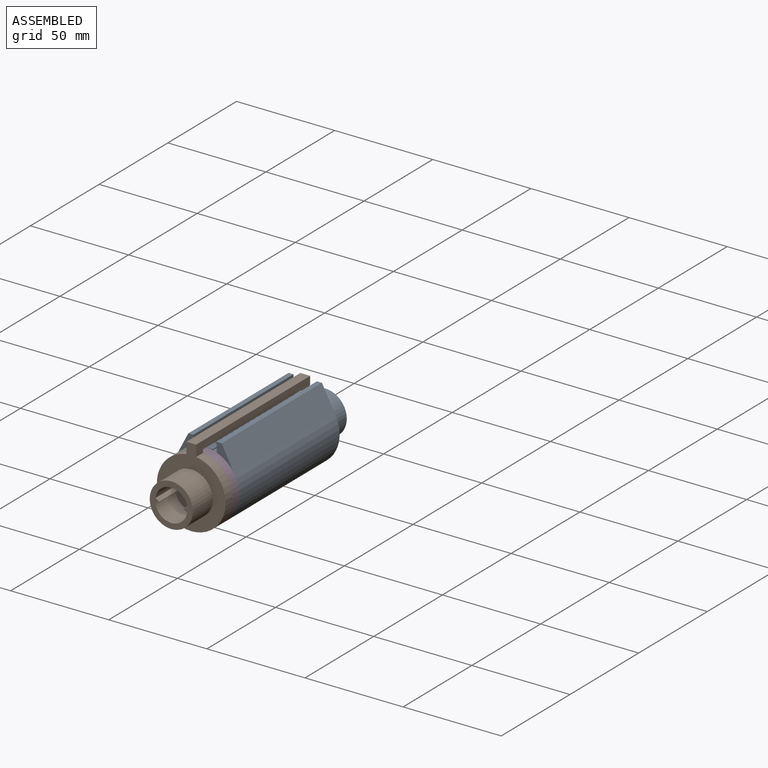
[diagram: assembled view]
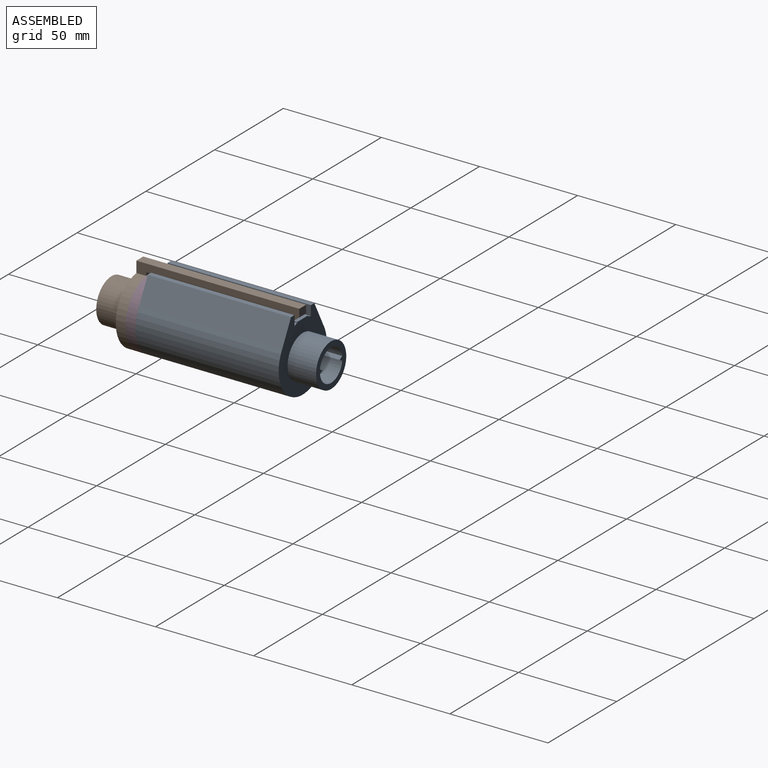
[diagram: assembled view, second angle]
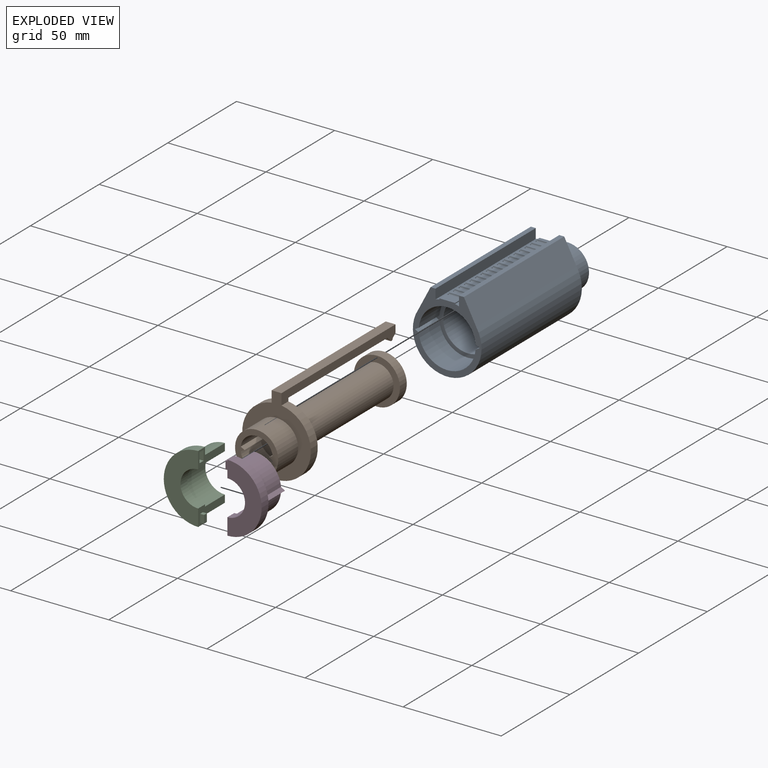
[diagram: exploded view]
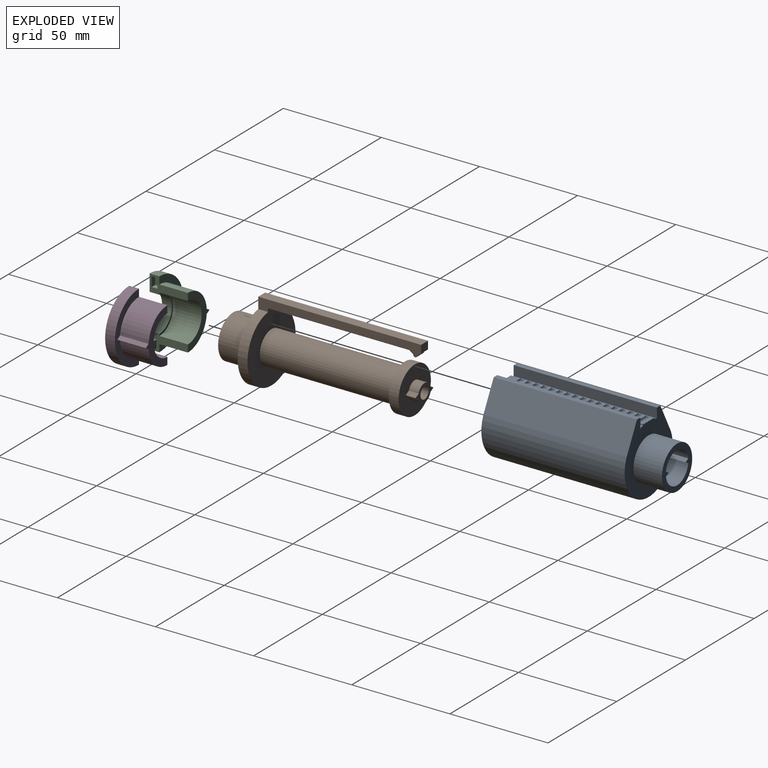
[diagram: exploded view, second angle]
ASSEMBLY  parts=4 mates=3
PART A: 143 faces, bbox 35x87.5x38.9 mm
  f0: plane 8x2mm, normal (0,0,1), area 16mm2, adj f18,f36,f139,f142
  f1: plane 8x2mm, normal (0,0,1), area 16mm2, adj f19,f37,f136,f139
  f2: plane 8x2mm, normal (0,0,1), area 16mm2, adj f20,f38,f133,f136
  f3: plane 8x2mm, normal (0,0,1), area 16mm2, adj f21,f39,f130,f133
  f4: plane 8x2mm, normal (0,0,1), area 16mm2, adj f22,f40,f127,f130
  f5: plane 8x2mm, normal (0,0,1), area 16mm2, adj f23,f41,f124,f127
  f6: plane 8x2mm, normal (0,0,1), area 16mm2, adj f24,f42,f121,f124
  f7: plane 8x2mm, normal (0,0,1), area 16mm2, adj f25,f43,f118,f121
  f8: plane 8x2mm, normal (0,0,1), area 16mm2, adj f26,f44,f115,f118
  f9: plane 8x2mm, normal (0,0,1), area 16mm2, adj f27,f45,f112,f115
  f10: plane 8x2mm, normal (0,0,1), area 16mm2, adj f28,f46,f109,f112
  f11: plane 8x2mm, normal (0,0,1), area 16mm2, adj f29,f47,f106,f109
  f12: plane 8x2mm, normal (0,0,1), area 16mm2, adj f30,f48,f103,f106
  f13: plane 8x2mm, normal (0,0,1), area 16mm2, adj f31,f49,f100,f103
  f14: plane 8x2mm, normal (0,0,1), area 16mm2, adj f32,f50,f97,f100
  f15: plane 8x2mm, normal (0,0,1), area 16mm2, adj f33,f51,f94,f97
  f16: plane 8x5mm, normal (0,0,1), area 40mm2, adj f34,f52,f54,f94
  f17: plane 2.11x0.46mm, normal (-1,0,0), area 0.9mm2, adj f57,f58,f67,f142
  f18: plane 2.23x0.46mm, normal (-1,0,0), area 1mm2, adj f0,f58,f139,f142
  f19: plane 2.23x0.46mm, normal (-1,0,0), area 1mm2, adj f1,f58,f136,f139
  f20: plane 2.23x0.46mm, normal (-1,0,0), area 1mm2, adj f2,f58,f133,f136
  f21: plane 2.23x0.46mm, normal (-1,0,0), area 1mm2, adj f3,f58,f130,f133
  f22: plane 2.23x0.46mm, normal (-1,0,0), area 1mm2, adj f4,f58,f127,f130
  f23: plane 2.23x0.46mm, normal (-1,0,0), area 1mm2, adj f5,f58,f124,f127
  f24: plane 2.23x0.46mm, normal (-1,0,0), area 1mm2, adj f6,f58,f121,f124
  f25: plane 2.23x0.46mm, normal (-1,0,0), area 1mm2, adj f7,f58,f118,f121
  f26: plane 2.23x0.46mm, normal (-1,0,0), area 1mm2, adj f8,f58,f115,f118
  f27: plane 2.23x0.46mm, normal (-1,0,0), area 1mm2, adj f9,f58,f112,f115
  f28: plane 2.23x0.46mm, normal (-1,0,0), area 1mm2, adj f10,f58,f109,f112
  f29: plane 2.23x0.46mm, normal (-1,0,0), area 1mm2, adj f11,f58,f106,f109
  f30: plane 2.23x0.46mm, normal (-1,0,0), area 1mm2, adj f12,f58,f103,f106
  f31: plane 2.23x0.46mm, normal (-1,0,0), area 1mm2, adj f13,f58,f100,f103
  f32: plane 2.23x0.46mm, normal (-1,0,0), area 1mm2, adj f14,f58,f97,f100
  f33: plane 2.23x0.46mm, normal (-1,0,0), area 1mm2, adj f15,f58,f94,f97
  f34: plane 5.11x0.46mm, normal (-1,0,0), area 2.3mm2, adj f16,f54,f58,f94
  f35: plane 2.11x0.46mm, normal (1,0,0), area 0.9mm2, adj f57,f66,f67,f142
  f36: plane 2.23x0.46mm, normal (1,0,0), area 1mm2, adj f0,f66,f139,f142
  f37: plane 2.23x0.46mm, normal (1,0,0), area 1mm2, adj f1,f66,f136,f139
  f38: plane 2.23x0.46mm, normal (1,0,0), area 1mm2, adj f2,f66,f133,f136
  f39: plane 2.23x0.46mm, normal (1,0,0), area 1mm2, adj f3,f66,f130,f133
  f40: plane 2.23x0.46mm, normal (1,0,0), area 1mm2, adj f4,f66,f127,f130
  f41: plane 2.23x0.46mm, normal (1,0,0), area 1mm2, adj f5,f66,f124,f127
  f42: plane 2.23x0.46mm, normal (1,0,0), area 1mm2, adj f6,f66,f121,f124
  f43: plane 2.23x0.46mm, normal (1,0,0), area 1mm2, adj f7,f66,f118,f121
  f44: plane 2.23x0.46mm, normal (1,0,0), area 1mm2, adj f8,f66,f115,f118
  f45: plane 2.23x0.46mm, normal (1,0,0), area 1mm2, adj f9,f66,f112,f115
  f46: plane 2.23x0.46mm, normal (1,0,0), area 1mm2, adj f10,f66,f109,f112
  f47: plane 2.23x0.46mm, normal (1,0,0), area 1mm2, adj f11,f66,f106,f109
  f48: plane 2.23x0.46mm, normal (1,0,0), area 1mm2, adj f12,f66,f103,f106
  f49: plane 2.23x0.46mm, normal (1,0,0), area 1mm2, adj f13,f66,f100,f103
  f50: plane 2.23x0.46mm, normal (1,0,0), area 1mm2, adj f14,f66,f97,f100
  f51: plane 2.23x0.46mm, normal (1,0,0), area 1mm2, adj f15,f66,f94,f97
  f52: plane 5.11x0.46mm, normal (1,0,0), area 2.3mm2, adj f16,f54,f66,f94
  f53: cylinder r=12.5mm len=53mm, axis (0,1,0), area 4162.6mm2, adj f74,f91
  f54: plane 38.94x35mm, normal (0,-1,0), area 358.1mm2, adj f16,f34,f52,f58,f59,f60,f61,f62
  f55: plane 16.25x7.97mm, normal (0,1,0), area 61.9mm2, adj f69,f70,f71,f80,f81,f82
  f56: plane 16.25x7.97mm, normal (0,1,0), area 61.9mm2, adj f68,f72,f73,f77,f78,f79
  f57: plane 8x2mm, normal (0,0,1), area 16mm2, adj f17,f35,f67,f142
  f58: cylinder r=17.5mm len=73mm, axis (0,1,0), area 152.5mm2, adj f17,f18,f19,f20,f21,f22,f23,f24
  f59: plane 73x5mm, normal (1,0,0), area 365mm2, adj f54,f58,f60,f67
  f60: plane 73x2.5mm, normal (0,0,1), area 182.5mm2, adj f54,f59,f61,f67
  f61: plane 73x12.09mm, normal (-0.89,0,0.46), area 995.3mm2, adj f54,f60,f62,f67
  f62: cylinder r=17.5mm len=73mm, axis (0,1,0), area 5452.8mm2, adj f54,f61,f63,f67
  f63: plane 73x12.09mm, normal (0.89,0,0.46), area 995.3mm2, adj f54,f62,f64,f67
  f64: plane 73x2.5mm, normal (0,0,1), area 182.5mm2, adj f54,f63,f65,f67
  f65: plane 73x5mm, normal (-1,0,0), area 365mm2, adj f54,f64,f66,f67
  f66: cylinder r=17.5mm len=73mm, axis (0,1,0), area 152.5mm2, adj f35,f36,f37,f38,f39,f40,f41,f42
  f67: plane 38.94x35mm, normal (0,1,0), area 643.2mm2, adj f17,f35,f57,f58,f59,f60,f61,f62
  f68: plane 5x2.16mm, normal (-0.5,0,-0.87), area 12.5mm2, adj f56,f69,f73,f74,f76
  f69: plane 5x2.16mm, normal (-0.5,0,0.87), area 12.5mm2, adj f55,f68,f70,f74,f76
  f70: cylinder r=5mm len=9.68mm, axis (0,1,0), area 65.9mm2, adj f55,f69,f71,f74
  f71: plane 5x2.16mm, normal (0.5,0,0.87), area 12.5mm2, adj f55,f70,f72,f74,f75
  f72: plane 5x2.16mm, normal (0.5,0,-0.87), area 12.5mm2, adj f56,f71,f73,f74,f75
  f73: cylinder r=5mm len=9.68mm, axis (0,1,0), area 65.9mm2, adj f56,f68,f72,f74
  f74: plane 25x25mm, normal (0,-1,0), area 407.5mm2, adj f53,f68,f69,f70,f71,f72,f73
  f75: plane 0.8x0.46mm, normal (0,-1,0), area 0.2mm2, adj f71,f72,f79,f80
  f76: plane 0.8x0.46mm, normal (0,-1,0), area 0.2mm2, adj f68,f69,f77,f82
  f77: plane 14.5x1.92mm, normal (-0.5,0,0.87), area 32.2mm2, adj f56,f76,f78,f82,f84
  f78: cylinder r=8.2mm len=16.25mm, axis (0,-1,0), area 341.2mm2, adj f56,f77,f79,f84
  f79: plane 14.5x1.92mm, normal (0.5,0,0.87), area 32.2mm2, adj f56,f75,f78,f80,f84
  f80: plane 14.5x1.92mm, normal (0.5,0,-0.87), area 32.2mm2, adj f55,f75,f79,f81,f84
  f81: cylinder r=8.2mm len=16.25mm, axis (0,-1,0), area 341.2mm2, adj f55,f80,f82,f84
  f82: plane 14.5x1.92mm, normal (-0.5,0,-0.87), area 32.2mm2, adj f55,f76,f77,f81,f84
  f83: cylinder r=11mm len=22mm, axis (0,-1,0), area 1002.2mm2, adj f67,f84
  f84: plane 22x22mm, normal (0,1,0), area 173.4mm2, adj f77,f78,f79,f80,f81,f82,f83
  f85: plane 15x2.05mm, normal (0.5,0,-0.87), area 35.5mm2, adj f54,f86,f90,f91
  f86: plane 15x2.05mm, normal (0.5,0,0.87), area 35.5mm2, adj f54,f85,f87,f91
  f87: cylinder r=14.5mm len=28.9mm, axis (0,-1,0), area 647.8mm2, adj f54,f86,f88,f91
  f88: plane 15x2.05mm, normal (-0.5,0,0.87), area 35.5mm2, adj f54,f87,f89,f91
  f89: plane 15x2.05mm, normal (-0.5,0,-0.87), area 35.5mm2, adj f54,f88,f90,f91
  f90: cylinder r=14.5mm len=28.9mm, axis (0,-1,0), area 647.8mm2, adj f54,f85,f89,f91
  f91: plane 33x29mm, normal (0,-1,0), area 174.3mm2, adj f53,f85,f86,f87,f88,f89,f90
  f92: plane 1.77x0.54mm, normal (1,0,0), area 0.7mm2, adj f58,f94
  f93: plane 1.77x0.54mm, normal (-1,0,0), area 0.7mm2, adj f66,f94
  f94: cylinder r=1mm len=8mm, axis (-1,0,0), area 25.1mm2, adj f15,f16,f33,f34,f51,f52,f92,f93
  f95: plane 1.77x0.54mm, normal (1,0,0), area 0.7mm2, adj f58,f97
  f96: plane 1.77x0.54mm, normal (-1,0,0), area 0.7mm2, adj f66,f97
  f97: cylinder r=1mm len=8mm, axis (-1,0,0), area 25.1mm2, adj f14,f15,f32,f33,f50,f51,f95,f96
  f98: plane 1.77x0.54mm, normal (1,0,0), area 0.7mm2, adj f58,f100
  f99: plane 1.77x0.54mm, normal (-1,0,0), area 0.7mm2, adj f66,f100
  f100: cylinder r=1mm len=8mm, axis (-1,0,0), area 25.1mm2, adj f13,f14,f31,f32,f49,f50,f98,f99
  f101: plane 1.77x0.54mm, normal (1,0,0), area 0.7mm2, adj f58,f103
  f102: plane 1.77x0.54mm, normal (-1,0,0), area 0.7mm2, adj f66,f103
  f103: cylinder r=1mm len=8mm, axis (-1,0,0), area 25.1mm2, adj f12,f13,f30,f31,f48,f49,f101,f102
  f104: plane 1.77x0.54mm, normal (1,0,0), area 0.7mm2, adj f58,f106
  f105: plane 1.77x0.54mm, normal (-1,0,0), area 0.7mm2, adj f66,f106
  f106: cylinder r=1mm len=8mm, axis (-1,0,0), area 25.1mm2, adj f11,f12,f29,f30,f47,f48,f104,f105
  f107: plane 1.77x0.54mm, normal (1,0,0), area 0.7mm2, adj f58,f109
  f108: plane 1.77x0.54mm, normal (-1,0,0), area 0.7mm2, adj f66,f109
  f109: cylinder r=1mm len=8mm, axis (-1,0,0), area 25.1mm2, adj f10,f11,f28,f29,f46,f47,f107,f108
  f110: plane 1.77x0.54mm, normal (1,0,0), area 0.7mm2, adj f58,f112
  f111: plane 1.77x0.54mm, normal (-1,0,0), area 0.7mm2, adj f66,f112
  f112: cylinder r=1mm len=8mm, axis (-1,0,0), area 25.1mm2, adj f9,f10,f27,f28,f45,f46,f110,f111
  f113: plane 1.77x0.54mm, normal (1,0,0), area 0.7mm2, adj f58,f115
  f114: plane 1.77x0.54mm, normal (-1,0,0), area 0.7mm2, adj f66,f115
  f115: cylinder r=1mm len=8mm, axis (-1,0,0), area 25.1mm2, adj f8,f9,f26,f27,f44,f45,f113,f114
  f116: plane 1.77x0.54mm, normal (1,0,0), area 0.7mm2, adj f58,f118
  f117: plane 1.77x0.54mm, normal (-1,0,0), area 0.7mm2, adj f66,f118
  f118: cylinder r=1mm len=8mm, axis (-1,0,0), area 25.1mm2, adj f7,f8,f25,f26,f43,f44,f116,f117
  f119: plane 1.77x0.54mm, normal (1,0,0), area 0.7mm2, adj f58,f121
  f120: plane 1.77x0.54mm, normal (-1,0,0), area 0.7mm2, adj f66,f121
  f121: cylinder r=1mm len=8mm, axis (-1,0,0), area 25.1mm2, adj f6,f7,f24,f25,f42,f43,f119,f120
  f122: plane 1.77x0.54mm, normal (1,0,0), area 0.7mm2, adj f58,f124
  f123: plane 1.77x0.54mm, normal (-1,0,0), area 0.7mm2, adj f66,f124
  f124: cylinder r=1mm len=8mm, axis (-1,0,0), area 25.1mm2, adj f5,f6,f23,f24,f41,f42,f122,f123
  f125: plane 1.77x0.54mm, normal (1,0,0), area 0.7mm2, adj f58,f127
  f126: plane 1.77x0.54mm, normal (-1,0,0), area 0.7mm2, adj f66,f127
  f127: cylinder r=1mm len=8mm, axis (-1,0,0), area 25.1mm2, adj f4,f5,f22,f23,f40,f41,f125,f126
  f128: plane 1.77x0.54mm, normal (1,0,0), area 0.7mm2, adj f58,f130
  f129: plane 1.77x0.54mm, normal (-1,0,0), area 0.7mm2, adj f66,f130
  f130: cylinder r=1mm len=8mm, axis (-1,0,0), area 25.1mm2, adj f3,f4,f21,f22,f39,f40,f128,f129
  f131: plane 1.77x0.54mm, normal (1,0,0), area 0.7mm2, adj f58,f133
  f132: plane 1.77x0.54mm, normal (-1,0,0), area 0.7mm2, adj f66,f133
  f133: cylinder r=1mm len=8mm, axis (-1,0,0), area 25.1mm2, adj f2,f3,f20,f21,f38,f39,f131,f132
  f134: plane 1.77x0.54mm, normal (1,0,0), area 0.7mm2, adj f58,f136
  f135: plane 1.77x0.54mm, normal (-1,0,0), area 0.7mm2, adj f66,f136
  f136: cylinder r=1mm len=8mm, axis (-1,0,0), area 25.1mm2, adj f1,f2,f19,f20,f37,f38,f134,f135
  f137: plane 1.77x0.54mm, normal (1,0,0), area 0.7mm2, adj f58,f139
  f138: plane 1.77x0.54mm, normal (-1,0,0), area 0.7mm2, adj f66,f139
  f139: cylinder r=1mm len=8mm, axis (-1,0,0), area 25.1mm2, adj f0,f1,f18,f19,f36,f37,f137,f138
  f140: plane 1.77x0.54mm, normal (1,0,0), area 0.7mm2, adj f58,f142
  f141: plane 1.77x0.54mm, normal (-1,0,0), area 0.7mm2, adj f66,f142
  f142: cylinder r=1mm len=8mm, axis (-1,0,0), area 25.1mm2, adj f0,f17,f18,f35,f36,f57,f140,f141
PART B: 32 faces, bbox 35x97.5x40.5 mm
  f0: plane 16.4x16.25mm, normal (0,1,0), area 178.5mm2, adj f7,f24,f25,f26,f27,f28,f29
  f1: plane 5x2.18mm, normal (-0.5,0,0.87), area 12.6mm2, adj f2,f6,f8,f11
  f2: plane 5x2.18mm, normal (-0.5,0,-0.87), area 12.6mm2, adj f1,f3,f8,f11
  f3: cylinder r=4.5mm len=8.64mm, axis (0,1,0), area 57.9mm2, adj f2,f4,f8,f11
  f4: plane 5x2.18mm, normal (0.5,0,-0.87), area 12.6mm2, adj f3,f5,f8,f11
  f5: plane 5x2.18mm, normal (0.5,0,0.87), area 12.6mm2, adj f4,f6,f8,f11
  f6: cylinder r=4.5mm len=8.64mm, axis (0,1,0), area 57.9mm2, adj f1,f5,f8,f11
  f7: cylinder r=3mm len=83mm, axis (0,1,0), area 1564.5mm2, adj f0,f8
  f8: plane 13x9mm, normal (0,-1,0), area 40.2mm2, adj f1,f2,f3,f4,f5,f6,f7
  f9: cylinder r=11.75mm len=23.5mm, axis (0,-1,0), area 369.1mm2, adj f10,f11
  f10: plane 23.5x23.5mm, normal (0,1,0), area 206.8mm2, adj f9,f12
  f11: plane 23.5x23.5mm, normal (0,-1,0), area 365.2mm2, adj f1,f2,f3,f4,f5,f6,f9
  f12: cylinder r=8.5mm len=68mm, axis (0,-1,0), area 3631.7mm2, adj f10,f18
  f13: cylinder r=17.5mm len=35mm, axis (0,-1,0), area 524.7mm2, adj f14,f16,f17,f18
  f14: plane 83x6.5mm, normal (-1,0,0), area 348mm2, adj f13,f15,f17,f18,f19,f20,f21,f22
  f15: plane 83x5mm, normal (0,0,1), area 415mm2, adj f14,f16,f17,f20
  f16: plane 83x6.5mm, normal (1,0,0), area 348mm2, adj f13,f15,f17,f18,f19,f20,f21,f22
  f17: plane 40.5x35mm, normal (0,1,0), area 609.8mm2, adj f13,f14,f15,f16,f30
  f18: plane 36.5x35mm, normal (0,-1,0), area 742.9mm2, adj f12,f13,f14,f16,f19
  f19: plane 72x5mm, normal (0,0,-1), area 360mm2, adj f14,f16,f18,f23
  f20: plane 5x4mm, normal (0,-1,0), area 20mm2, adj f14,f15,f16,f21
  f21: plane 5x2mm, normal (0,-0.6,-0.8), area 12.5mm2, adj f14,f16,f20,f22
  f22: cylinder r=1mm len=5mm, axis (1,0,0), area 15.7mm2, adj f14,f16,f21,f23
  f23: plane 5x2mm, normal (0,0.6,-0.8), area 12.5mm2, adj f14,f16,f19,f22
  f24: plane 14.5x1.92mm, normal (-0.5,0,-0.87), area 32.2mm2, adj f0,f25,f29,f31
  f25: plane 14.5x1.92mm, normal (-0.5,0,0.87), area 32.2mm2, adj f0,f24,f26,f31
  f26: cylinder r=8.2mm len=16.25mm, axis (0,-1,0), area 341.2mm2, adj f0,f25,f27,f31
  f27: plane 14.5x1.92mm, normal (0.5,0,0.87), area 32.2mm2, adj f0,f26,f28,f31
  f28: plane 14.5x1.92mm, normal (0.5,0,-0.87), area 32.2mm2, adj f0,f27,f29,f31
  f29: cylinder r=8.2mm len=16.25mm, axis (0,-1,0), area 341.2mm2, adj f0,f24,f28,f31
  f30: cylinder r=11mm len=22mm, axis (0,-1,0), area 1002.2mm2, adj f17,f31
  f31: plane 22x22mm, normal (0,1,0), area 173.4mm2, adj f24,f25,f26,f27,f28,f29,f30
PART C: 23 faces, bbox 19.5x19.5x35 mm
  f0: plane 19.5x8.5mm, normal (-1,0,0), area 81.9mm2, adj f1,f2,f6,f7,f8,f9,f10,f11
  f1: cylinder r=9mm len=18mm, axis (0,1,0), area 141.4mm2, adj f0,f9,f11,f12
  f2: cylinder r=13.75mm len=14.5mm, axis (0,1,0), area 296mm2, adj f0,f5,f6,f7
  f3: cylinder r=13.75mm len=14.5mm, axis (0,1,0), area 296mm2, adj f4,f6,f7,f12
  f4: plane 14.5x2.05mm, normal (0.5,0,-0.87), area 34.3mm2, adj f3,f5,f6,f7
  f5: plane 14.5x2.05mm, normal (0.5,0,0.87), area 34.3mm2, adj f2,f4,f6,f7
  f6: plane 27.5x15.75mm, normal (0,-1,0), area 142.2mm2, adj f0,f2,f3,f4,f5,f10,f12
  f7: plane 35x17.5mm, normal (0,-1,0), area 181.7mm2, adj f0,f2,f3,f4,f5,f8,f12
  f8: cylinder r=17.5mm len=35mm, axis (0,-1,0), area 274.9mm2, adj f0,f7,f9,f12
  f9: plane 35x17.5mm, normal (0,1,0), area 353.8mm2, adj f0,f1,f8,f12
  f10: cylinder r=10mm len=20mm, axis (0,-1,0), area 455.5mm2, adj f0,f6,f11,f12
  f11: plane 20x10mm, normal (0,-1,0), area 29.8mm2, adj f0,f1,f10,f12
  f12: plane 19.5x8.5mm, normal (-1,0,0), area 88.9mm2, adj f1,f3,f6,f7,f8,f9,f10,f11
  f13: plane 3x2.5mm, normal (0,0,-1), area 7.5mm2, adj f0,f14,f16,f17
  f14: plane 5x2.5mm, normal (0,-1,0), area 12.5mm2, adj f0,f13,f15,f17
  f15: plane 3x2.5mm, normal (0,0,1), area 7.5mm2, adj f0,f14,f16,f17
  f16: plane 5x2.5mm, normal (0,1,0), area 12.5mm2, adj f0,f13,f15,f17
  f17: plane 5x3mm, normal (-1,0,0), area 15mm2, adj f13,f14,f15,f16
  f18: plane 4x2mm, normal (0,1,0), area 8mm2, adj f12,f19,f21,f22
  f19: plane 2x2mm, normal (0,0,-1), area 4mm2, adj f12,f18,f20,f22
  f20: plane 4x2mm, normal (0,-1,0), area 8mm2, adj f12,f19,f21,f22
  f21: plane 2x2mm, normal (0,0,1), area 4mm2, adj f12,f18,f20,f22
  f22: plane 4x2mm, normal (-1,0,0), area 8mm2, adj f18,f19,f20,f21
PART D: same geometry as C
PLACE A rot(axis=(0.03,0.93,-0.37),0deg) t=(-19.71,21.17,29.78)mm
PLACE B rot(axis=(0,0,1),180deg) t=(-19.71,16.17,29.78)mm
PLACE C rot(axis=(0,0,1),180deg) t=(-19.71,-51.83,29.78)mm
PLACE D rot(axis=(-1,0,0),180deg) t=(-19.71,-51.83,29.78)mm
MATE fastened C.f8 <-> A.f87  axis (0,1,0) through (-19.71,-51.83,29.78)mm
MATE slider B.f12 <-> C.f1  axis (0,1,0) through (-19.71,-56.83,29.78)mm
MATE fastened D.f0 <-> C.f12  axis (-1,0,0) through (-19.71,-54.33,15.78)mm
